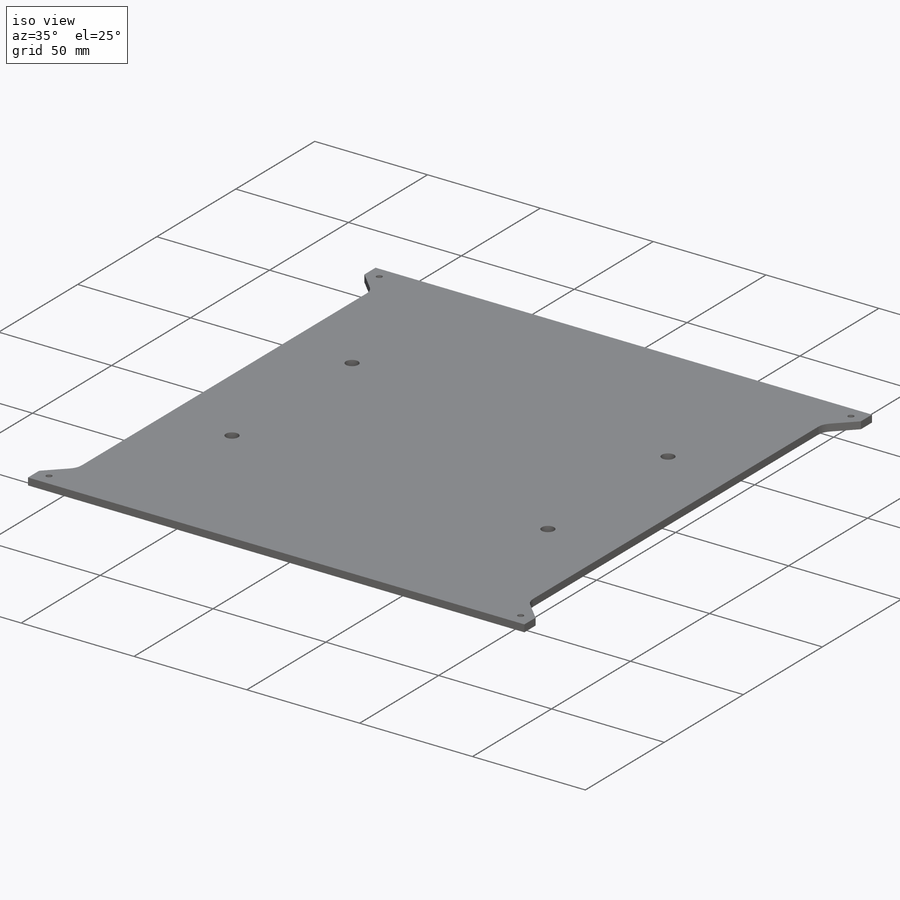
[diagram: iso view]
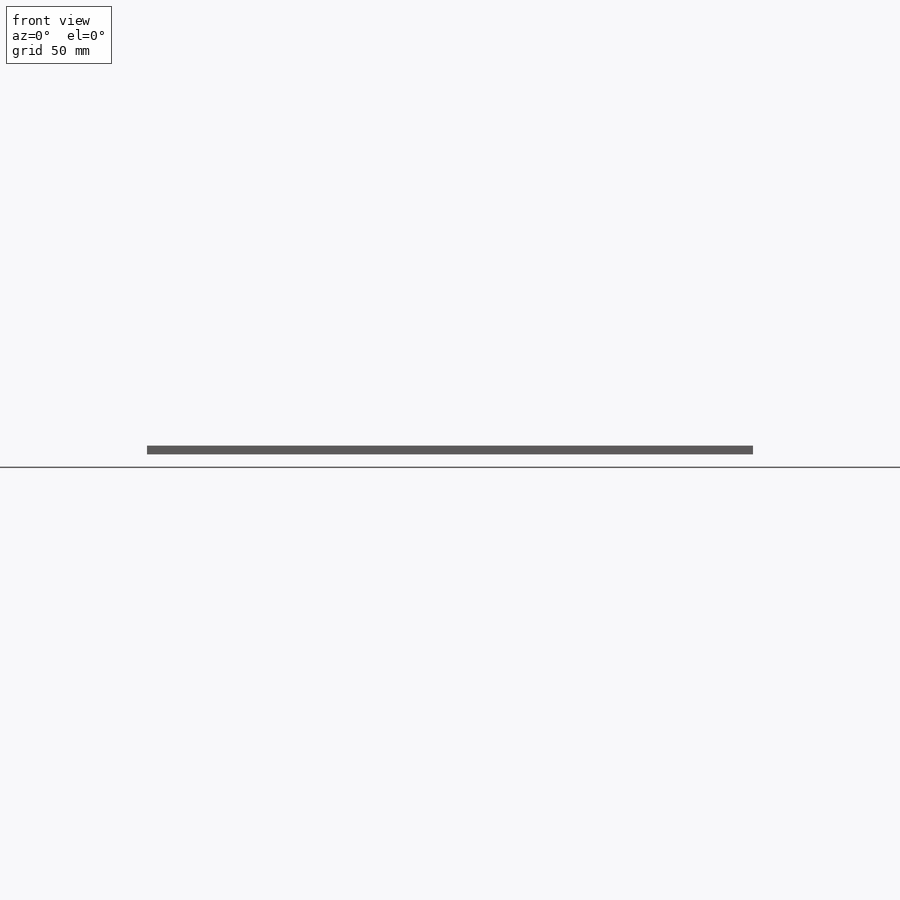
[diagram: front view]
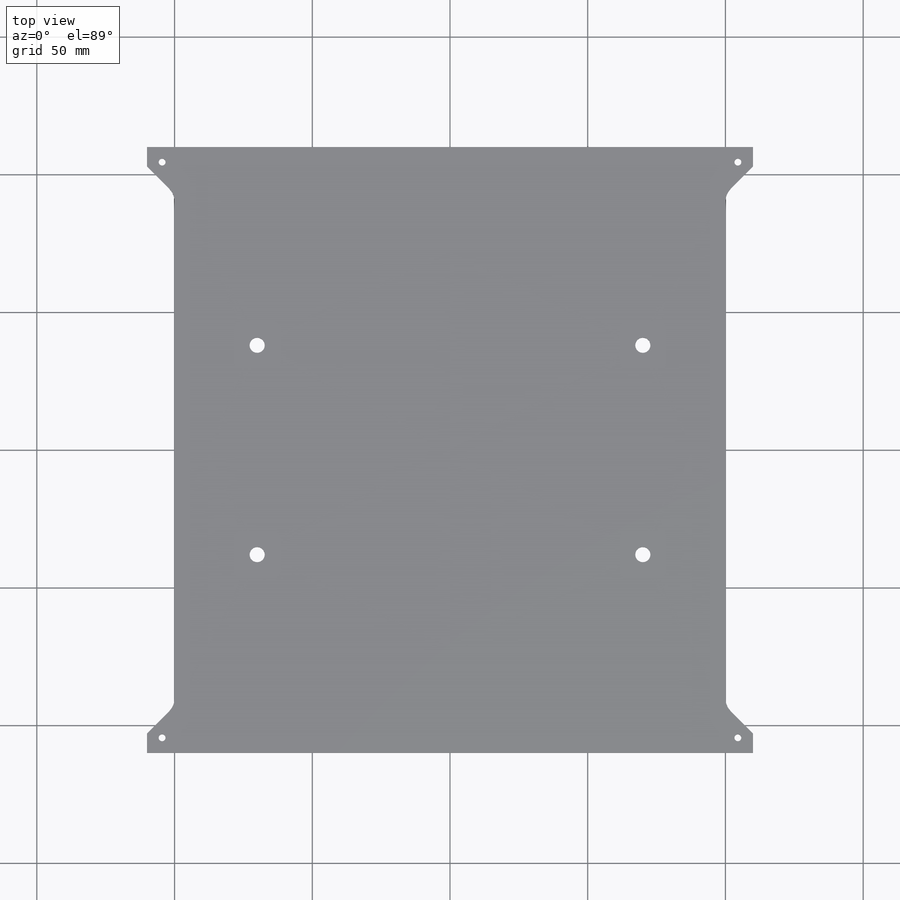
[diagram: top view]
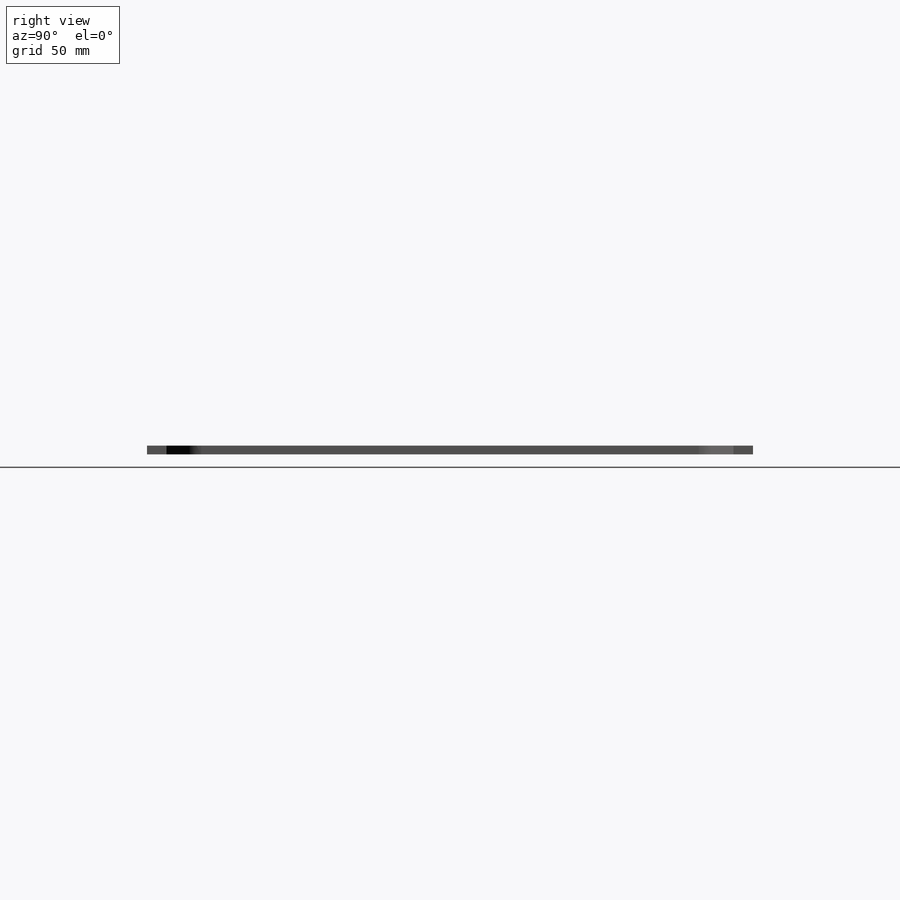
[diagram: right view]
SOLIDWORKS PART (.sldprt)
format: sldprt  version: not decoded by parser v0  size: 391,680 bytes
history: native  units: mm
features: sketch x5, thread x4, cut_extrude x2, material x1, extrude x1, hole x1 (+11 scaffold rows collapsed)
feature tree (25):
  scaffold x11  (default folders/planes/origin — collapsed)
  material  "6061-T6 (SS)"
  sketch  "Sketch1"  dims[D3=6.35mm D1=220.0mm D2=220.0mm]
  extrude  "Boss-Extrude1"  Depth=3.175mm
  hole  "M3x0.5 Tapped Hole1"  Diameter=2.5mm Depth=3.175mm
  sketch  "Sketch3"  dims[D1=209.0mm D2=209.0mm D3=18.0mm D4=110.0mm D5=24.0mm D6=148.0mm D7=74.0mm D8=45.5mm D9=45.5mm D10=105.0mm D11=105.0mm]
  sketch  "Sketch2"  dims[hole-wizard template sketch: 61 standard entries collapsed; hole parameters above]
  thread  "Hole Thread1"  Diameter=3mm  [1 undecoded]
  thread  "Hole Thread2"  Diameter=3mm  [1 undecoded]
  thread  "Hole Thread3"  Diameter=3mm  [1 undecoded]
  thread  "Hole Thread4"  Diameter=3mm  [1 undecoded]
  sketch  "Sketch4"  dims[c1.D1=5.5mm c1.D2=~147.994565mm c1.D3=~147.994565mm c2.D2=140.0mm c2.D3=76.0mm]
  cut_extrude  "Cut-Extrude1"  [1 undecoded]
  sketch  "Sketch5"  dims[D11=6.35mm D12=6.35mm D15=6.35mm D1=5.0mm D2=10.0mm D3=5.0mm D4=5.0mm D5=10.0mm D6=20.0mm D7=20.0mm D8=20.0mm D9=10.0mm D10=10.0mm D13=40.0mm D14=40.0mm]
  cut_extrude  "Cut-Extrude2"  [1 undecoded]
decode coverage: 11 of 13 modeling features carry decoded parameters
note: ~ marks probable driven/reference dimensions
note: 6 parameter values undecoded
note: suppression state not decoded; provenance and decode notes live in map.json
